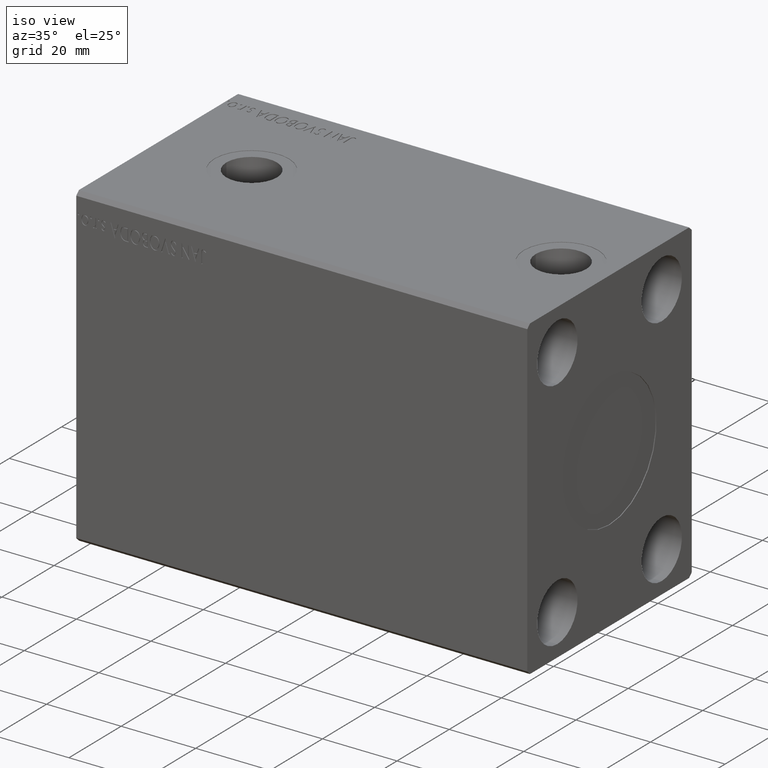
[diagram: clean part render]
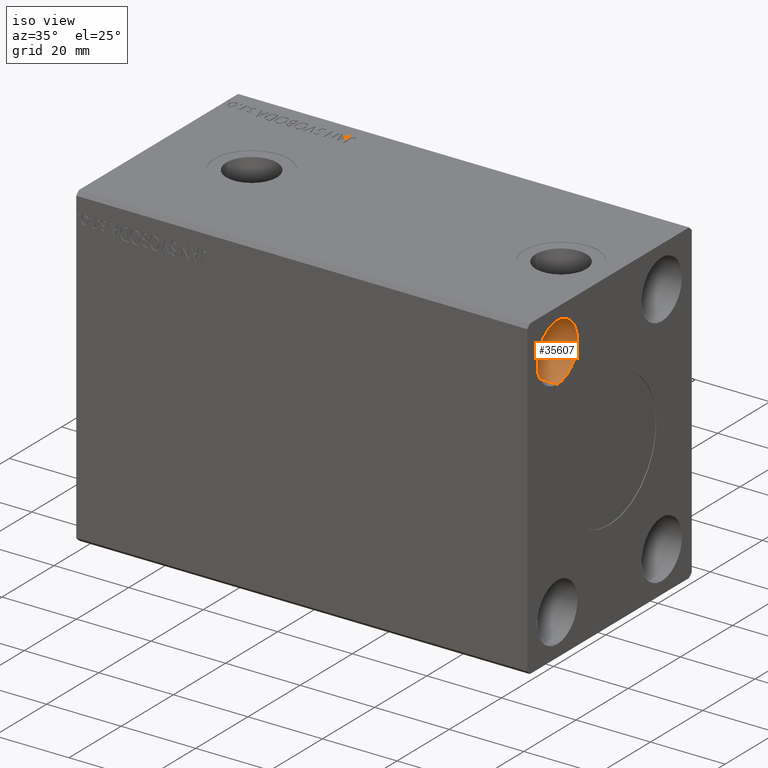
[diagram: same view with one face highlighted and labeled with its STEP entity id]
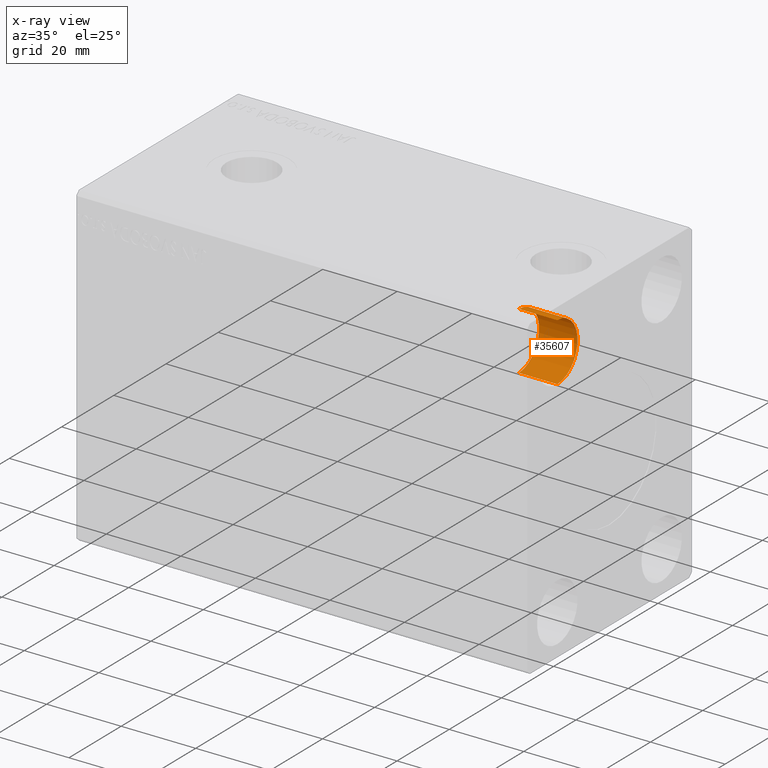
[diagram: x-ray of the same camera — body ghosted, the highlighted face saturated]
A machine part, iso view. The second image highlights one B-rep face of the part: STEP entity #35607.
The next image is the same camera in x-ray: the body ghosted, the highlighted face saturated — about 1% of this face is hidden behind the body in this view.
In plain terms, the highlighted cylindrical surface (edge-blend (fillet) strip) has radius 7.75 mm, axis along (1, -0, -0).
Its self-contained STEP definition (entity closure, byte-faithful):
#1489 = LINE ( 'NONE', #30844, #27852 ) ;
#2667 = ORIENTED_EDGE ( 'NONE', *, *, #3294, .T. ) ;
#3294 = EDGE_CURVE ( 'NONE', #30185, #22843, #34672, .T. ) ;
#3889 = EDGE_CURVE ( 'NONE', #30185, #37213, #1489, .T. ) ;
#8611 = EDGE_LOOP ( 'NONE', ( #20460, #2667, #12795, #24060 ) ) ;
#9921 = EDGE_CURVE ( 'NONE', #22843, #24283, #25335, .T. ) ;
#11577 = CARTESIAN_POINT ( 'NONE',  ( 110.6699999999999875, -19.99999999999999645, 31.50000000000001421 ) ) ;
#12096 = DIRECTION ( 'NONE',  ( 0.000000000000000000, 0.000000000000000000, 1.000000000000000000 ) ) ;
#12217 = VECTOR ( 'NONE', #31967, 1000.000000000000000 ) ;
#12246 = CARTESIAN_POINT ( 'NONE',  ( 121.0000000000000000, -19.99999999999999645, 23.75000000000001421 ) ) ;
#12795 = ORIENTED_EDGE ( 'NONE', *, *, #9921, .T. ) ;
#13348 = EDGE_CURVE ( 'NONE', #37213, #24283, #37864, .T. ) ;
#14325 = DIRECTION ( 'NONE',  ( 1.000000000000000000, -0.000000000000000000, -0.000000000000000000 ) ) ;
#14771 = DIRECTION ( 'NONE',  ( 0.000000000000000000, 0.000000000000000000, -1.000000000000000000 ) ) ;
#14997 = CYLINDRICAL_SURFACE ( 'NONE', #15781, 7.750000000000000000 ) ;
#15781 = AXIS2_PLACEMENT_3D ( 'NONE', #11577, #37515, #14771 ) ;
#18733 = CARTESIAN_POINT ( 'NONE',  ( 121.0000000000000000, -19.99999999999999645, 31.50000000000001421 ) ) ;
#18867 = CARTESIAN_POINT ( 'NONE',  ( 110.6699999999999875, -19.99999999999999645, 23.75000000000001421 ) ) ;
#20460 = ORIENTED_EDGE ( 'NONE', *, *, #3889, .F. ) ;
#21648 = FACE_OUTER_BOUND ( 'NONE', #8611, .T. ) ;
#21943 = DIRECTION ( 'NONE',  ( -1.000000000000000000, -0.000000000000000000, -0.000000000000000000 ) ) ;
#22843 = VERTEX_POINT ( 'NONE', #41070 ) ;
#24060 = ORIENTED_EDGE ( 'NONE', *, *, #13348, .F. ) ;
#24283 = VERTEX_POINT ( 'NONE', #12246 ) ;
#25335 = LINE ( 'NONE', #18867, #12217 ) ;
#26277 = CARTESIAN_POINT ( 'NONE',  ( 110.6699999999999875, -19.99999999999999645, 39.25000000000001421 ) ) ;
#27852 = VECTOR ( 'NONE', #14325, 1000.000000000000000 ) ;
#30185 = VERTEX_POINT ( 'NONE', #26277 ) ;
#30844 = CARTESIAN_POINT ( 'NONE',  ( 110.6699999999999875, -19.99999999999999645, 39.25000000000001421 ) ) ;
#31696 = AXIS2_PLACEMENT_3D ( 'NONE', #18733, #32670, #12096 ) ;
#31967 = DIRECTION ( 'NONE',  ( 1.000000000000000000, -0.000000000000000000, -0.000000000000000000 ) ) ;
#32431 = DIRECTION ( 'NONE',  ( 0.000000000000000000, 0.000000000000000000, 1.000000000000000000 ) ) ;
#32602 = CARTESIAN_POINT ( 'NONE',  ( 121.0000000000000000, -19.99999999999999645, 39.25000000000001421 ) ) ;
#32670 = DIRECTION ( 'NONE',  ( -1.000000000000000000, -0.000000000000000000, -0.000000000000000000 ) ) ;
#34672 = CIRCLE ( 'NONE', #41525, 7.750000000000000000 ) ;
#35607 = ADVANCED_FACE ( 'NONE', ( #21648 ), #14997, .F. ) ;
#37213 = VERTEX_POINT ( 'NONE', #32602 ) ;
#37515 = DIRECTION ( 'NONE',  ( 1.000000000000000000, -0.000000000000000000, -0.000000000000000000 ) ) ;
#37864 = CIRCLE ( 'NONE', #31696, 7.750000000000000000 ) ;
#38638 = CARTESIAN_POINT ( 'NONE',  ( 110.6699999999999875, -19.99999999999999645, 31.50000000000001421 ) ) ;
#41070 = CARTESIAN_POINT ( 'NONE',  ( 110.6699999999999875, -19.99999999999999645, 23.75000000000001421 ) ) ;
#41525 = AXIS2_PLACEMENT_3D ( 'NONE', #38638, #21943, #32431 ) ;